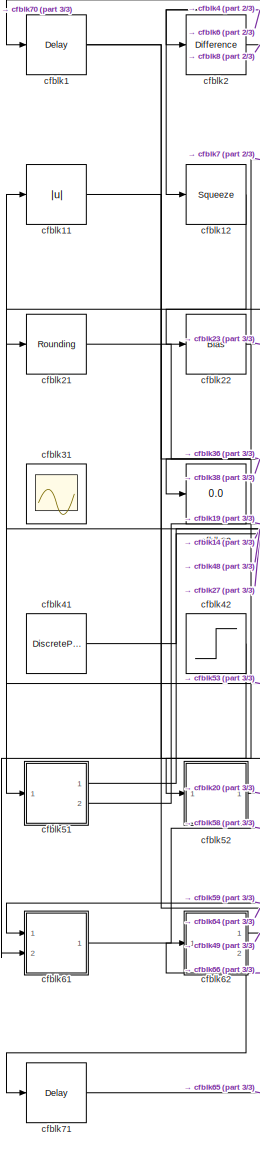
[diagram: root canvas - part 1/3, left side, full height]
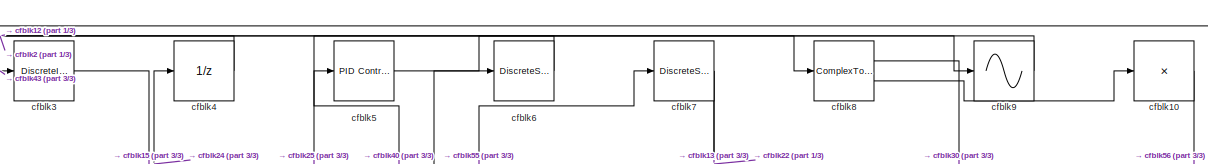
[diagram: root canvas - part 2/3, full width, top band]
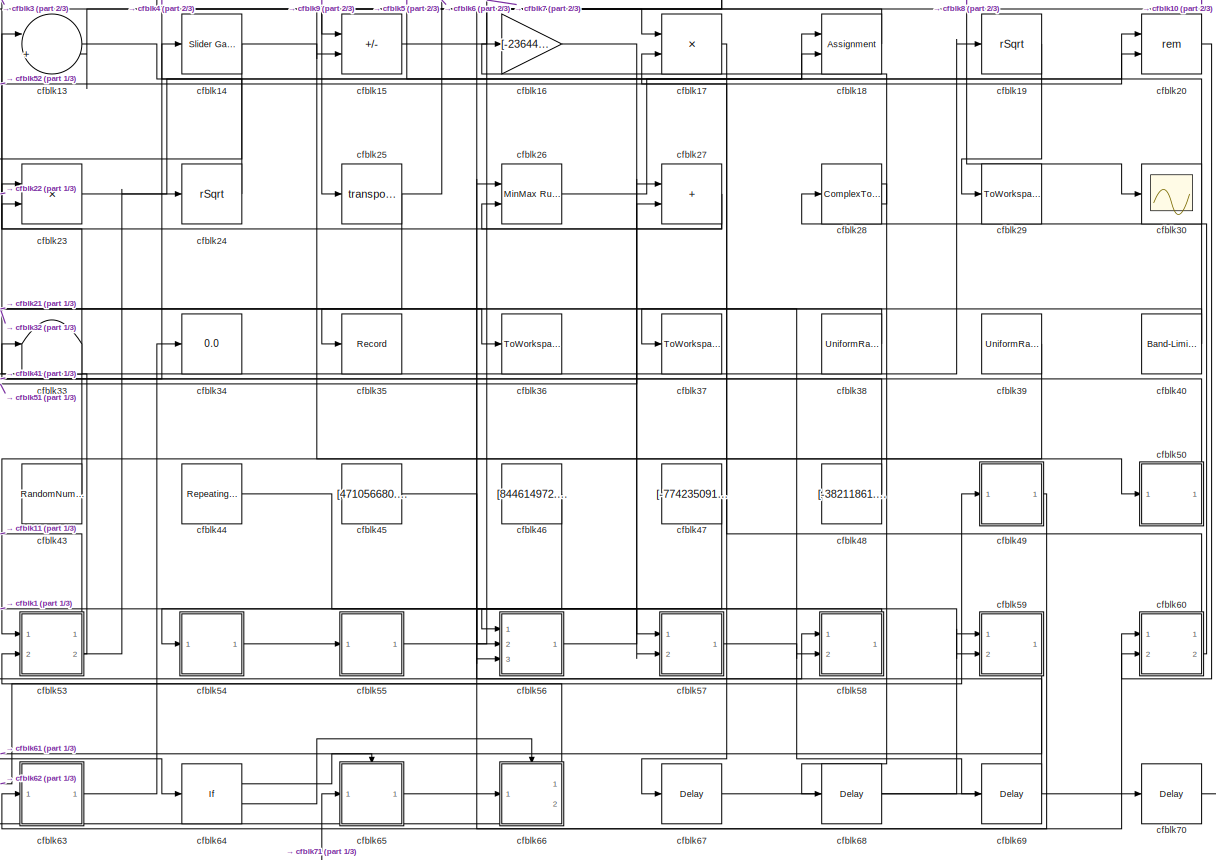
[diagram: root canvas - part 3/3, full width, middle band]
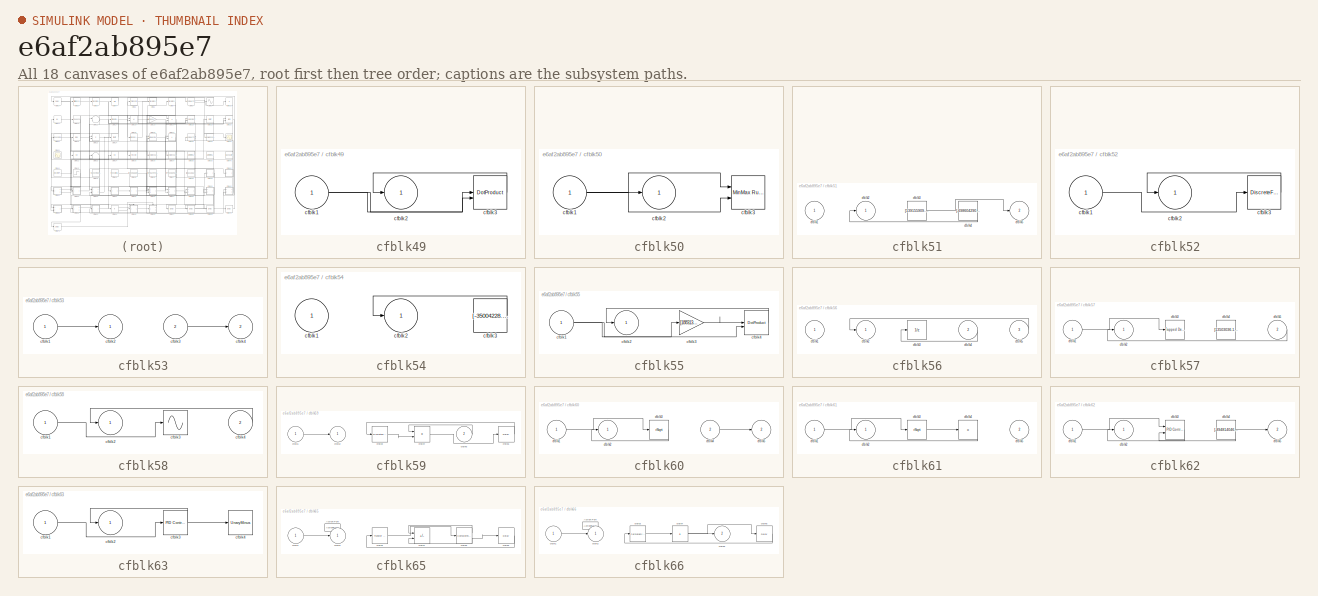
[diagram: thumbnail index - all 18 canvases of the model, root first then tree order]
MODEL slx_e6af2ab895e7
KIND model
CONFIG AbsTol = auto
CONFIG EnableMultiTasking = off
CONFIG FixedStep = auto
CONFIG MaxStep = auto
CONFIG MinStep = auto
CONFIG RelTol = 1e-3
CONFIG SampleTimeConstraint = Unconstrained
CONFIG SolverName = VariableStepAuto
CONFIG StartTime = 0.0
CONFIG StopTime = 10.0
BLOCK [Delay] cfblk1
  InputPortMap = u0
  Ports = [1, 1]
  SampleTime = 1
BLOCK [Product] cfblk10
  Inputs = *
  Ports = [1, 1]
BLOCK [Abs] cfblk11
  SaturateOnIntegerOverflow = off
BLOCK [Squeeze] cfblk12
BLOCK [Sum] cfblk13
  Inputs = |++
  Ports = [2, 1]
BLOCK [Reference] cfblk14  REF=simulink/Math
Operations/Slider
Gain
  Ports = [1, 1]
  SourceBlock = simulink/Math\nOperations/Slider\nGain
  SourceProductBaseCode = SL
  SourceType = Slider Gain
BLOCK [Sum] cfblk15
  IconShape = rectangular
  Inputs = +-
  Ports = [2, 1]
BLOCK [Gain] cfblk16
  Gain = [-236442905.790173]
BLOCK [Product] cfblk17
  Inputs = **
  Ports = [2, 1]
BLOCK [Assignment] cfblk18
  DiagnosticForDimensions = Warning
  IndexOptions = Index vector (dialog)
  Indices = 1
  OutputSizes = 1
  Ports = [2, 1]
BLOCK [Sqrt] cfblk19
  AlgorithmType = Newton-Raphson
  Operator = rSqrt
BLOCK [Reference] cfblk2  REF=simulink/Discrete/Difference
  Ports = [1, 1]
  SourceBlock = simulink/Discrete/Difference
  SourceProductBaseCode = SL
  SourceType = Difference
BLOCK [Math] cfblk20
  Operator = rem
  Ports = [2, 1]
BLOCK [Rounding] cfblk21
BLOCK [Bias] cfblk22
  Bias = [893360634.413111]
  SaturateOnIntegerOverflow = off
BLOCK [Product] cfblk23
  Inputs = **
  Ports = [2, 1]
BLOCK [Sqrt] cfblk24
  AlgorithmType = Newton-Raphson
  Operator = rSqrt
BLOCK [Math] cfblk25
  Operator = transpose
  Ports = [1, 1]
BLOCK [Reference] cfblk26  REF=simulink/Math
Operations/MinMax
Running
Resettable
  Ports = [2, 1]
  SourceBlock = simulink/Math\nOperations/MinMax\nRunning\nResettable
  SourceProductBaseCode = SL
  SourceType = MinMax Running Resettable
BLOCK [Sum] cfblk27
  IconShape = rectangular
  Ports = [2, 1]
BLOCK [ComplexToMagnitudeAngle] cfblk28
  Ports = [1, 2]
BLOCK [ToWorkspace] cfblk29
  FixptAsFi = on
  MaxDataPoints = inf
  Ports = [1]
  SampleTime = -1
  SaveFormat = Timeseries
  VariableName = bmaxmlt
BLOCK [DiscreteIntegrator] cfblk3
  ICPrevOutput = DiscIntNeverNeededParam
  ICPrevScaledInput = DiscIntNeverNeededParam
  InitialConditionSetting = Auto
  Ports = [1, 1]
BLOCK [Scope] cfblk30
  Floating = off
  NumInputPorts = 1
  Ports = [1]
BLOCK [Scope] cfblk31
  Floating = on
  NumInputPorts = 1
  Ports = []
BLOCK [Display] cfblk32
  Decimation = 1
  Ports = [1]
BLOCK [Terminator] cfblk33
BLOCK [Display] cfblk34
  Decimation = 1
  Ports = [1]
BLOCK [Record] cfblk35
  FileSettingsInternal = {"entries":[{"content":{"excelSettings":{"content":{},"type":"Streamout.ExcelSettings"}},"type":"Streamout.FileSettingStorage","uuid":"b6a5201c-cc65-4394-8318-2e7b67d75991"}],"packageUris":["http://schema.mathworks.com/mf0/streamout_blocks/R2020a"],"version":"1.0"}
  Ports = [1]
  SignalsInternal = {"entries":[{"content":{"signals":[{"content":{"blockPath":["sampleModel165/cfblk35"],"channel":[],"dimensions":[1,1],"domain":"sampleModel165/cfblk35","lineColor":"#139fff","plots":[1],"port":1,"sid":[""],"signalID":6213,"signalName":"cfblk25"},"type":"RecordBlkView.Signal","uuid":"4658ca25-e310-4004-b648-9cafa9c762c2"}]},"type":"RecordBlkView.InputSignals","uuid":"67faf64a-632e-47a0-acba-e1a5c06...<+99ch>
  VisualizationBindings = {"sparklinesplugin":{"info":[{"bindingParametersList":[],"subplotID":1}]}}
BLOCK [ToWorkspace] cfblk36
  FixptAsFi = on
  MaxDataPoints = inf
  Ports = [1]
  SampleTime = -1
  SaveFormat = Timeseries
  VariableName = nwavafb
BLOCK [ToWorkspace] cfblk37
  FixptAsFi = on
  MaxDataPoints = inf
  Ports = [1]
  SampleTime = -1
  SaveFormat = Timeseries
  VariableName = hvulkge
BLOCK [UniformRandomNumber] cfblk38
  Maximum = [1666055554.020015]
  Minimum = [-4824289272.714030]
  SampleTime = 0.1
  Seed = [13963222.000000]
BLOCK [UniformRandomNumber] cfblk39
  Maximum = [4145607413.978978]
  Minimum = [-5494796359.543709]
  SampleTime = 0.1
  Seed = [29917681.000000]
BLOCK [UnitDelay] cfblk4
  HasFrameUpgradeWarning = on
BLOCK [Reference] cfblk40  REF=simulink/Sources/Band-Limited
White Noise
  Ports = [0, 1]
  SourceBlock = simulink/Sources/Band-Limited\nWhite Noise
  SourceProductBaseCode = SL
  SourceType = Band-Limited White Noise.
BLOCK [DiscretePulseGenerator] cfblk41
  Amplitude = [-415616117.482009]
  Period = [3813721.989670]
  PhaseDelay = [6.000000]
  Ports = [0, 1]
  PulseType = Time based
  PulseWidth = 5
BLOCK [Step] cfblk42
  After = [-739509071.647704]
  Before = [-691626407.342706]
  SampleTime = 0
  Time = [4.000000]
BLOCK [RandomNumber] cfblk43
  Mean = [-18821.312850]
  SampleTime = 0.1
  Seed = [758949493.000000]
  Variance = [55831.299182]
BLOCK [Reference] cfblk44  REF=simulink/Sources/Repeating
Sequence
Stair
  Ports = [0, 1]
  SourceBlock = simulink/Sources/Repeating\nSequence\nStair
  SourceProductBaseCode = SL
  SourceType = Repeating Sequence Stair
BLOCK [Constant] cfblk45
  SampleTime = 1
  Value = [471056680.253536]
BLOCK [Constant] cfblk46
  SampleTime = 1
  Value = [844614972.197464]
BLOCK [Constant] cfblk47
  SampleTime = 1
  Value = [-774235091.951901]
BLOCK [Constant] cfblk48
  SampleTime = 1
  Value = [-38211861.722596]
BLOCK [SubSystem] cfblk49
  Ports = [1, 1]
  RequestExecContextInheritance = off
BLOCK [Inport] cfblk49/cfblk1
BLOCK [Outport] cfblk49/cfblk2
BLOCK [DotProduct] cfblk49/cfblk3
  OutDataTypeStr = Inherit: Inherit via internal rule
BLOCK [Reference] cfblk5  REF=slpidlib/PID Controller
  Ports = [1, 1]
  SourceBlock = slpidlib/PID Controller
  SourceProductBaseCode = SL
  SourceType = PID 1dof
BLOCK [SubSystem] cfblk50
  Ports = [1, 1]
  RequestExecContextInheritance = off
BLOCK [Inport] cfblk50/cfblk1
BLOCK [Outport] cfblk50/cfblk2
BLOCK [Reference] cfblk50/cfblk3  REF=simulink/Math
Operations/MinMax
Running
Resettable
  Ports = [2, 1]
  SourceBlock = simulink/Math\nOperations/MinMax\nRunning\nResettable
  SourceProductBaseCode = SL
  SourceType = MinMax Running Resettable
BLOCK [SubSystem] cfblk51
  Ports = [1, 2]
  RequestExecContextInheritance = off
BLOCK [Inport] cfblk51/cfblk1
BLOCK [Outport] cfblk51/cfblk2
BLOCK [Constant] cfblk51/cfblk3
  SampleTime = 1
  Value = [139155909.671998]
BLOCK [Constant] cfblk51/cfblk4
  SampleTime = 1
  Value = [-698604290.729357]
BLOCK [Outport] cfblk51/cfblk5
  Port = 2
BLOCK [SubSystem] cfblk52
  Ports = [1, 1]
  RequestExecContextInheritance = off
BLOCK [Inport] cfblk52/cfblk1
BLOCK [Outport] cfblk52/cfblk2
BLOCK [DiscreteFilter] cfblk52/cfblk3
  InputPortMap = u0
  Ports = [1, 1]
  SampleTime = 1
BLOCK [SubSystem] cfblk53
  Ports = [2, 2]
  RequestExecContextInheritance = off
BLOCK [Inport] cfblk53/cfblk1
BLOCK [Outport] cfblk53/cfblk2
BLOCK [Inport] cfblk53/cfblk3
  Port = 2
BLOCK [Outport] cfblk53/cfblk4
  Port = 2
BLOCK [SubSystem] cfblk54
  Ports = [1, 1]
  RequestExecContextInheritance = off
BLOCK [Inport] cfblk54/cfblk1
BLOCK [Outport] cfblk54/cfblk2
BLOCK [Constant] cfblk54/cfblk3
  SampleTime = 1
  Value = [-35004228.688269]
BLOCK [SubSystem] cfblk55
  Ports = [1, 1]
  RequestExecContextInheritance = off
BLOCK [Inport] cfblk55/cfblk1
BLOCK [Outport] cfblk55/cfblk2
BLOCK [Gain] cfblk55/cfblk3
  Gain = [188313165.648254]
BLOCK [DotProduct] cfblk55/cfblk4
  OutDataTypeStr = Inherit: Inherit via internal rule
BLOCK [SubSystem] cfblk56
  Ports = [3, 1]
  RequestExecContextInheritance = off
BLOCK [Inport] cfblk56/cfblk1
BLOCK [Outport] cfblk56/cfblk2
BLOCK [UnitDelay] cfblk56/cfblk3
  HasFrameUpgradeWarning = on
BLOCK [Inport] cfblk56/cfblk4
  Port = 2
BLOCK [Inport] cfblk56/cfblk5
  Port = 3
BLOCK [SubSystem] cfblk57
  Ports = [2, 1]
  RequestExecContextInheritance = off
BLOCK [Inport] cfblk57/cfblk1
BLOCK [Outport] cfblk57/cfblk2
BLOCK [Reference] cfblk57/cfblk3  REF=simulink/Discrete/Tapped Delay
  Ports = [1, 1]
  SourceBlock = simulink/Discrete/Tapped Delay
  SourceProductBaseCode = SL
  SourceType = Tapped Delay Line
BLOCK [Constant] cfblk57/cfblk4
  SampleTime = 1
  Value = [13503036.166388]
BLOCK [Inport] cfblk57/cfblk5
  Port = 2
BLOCK [SubSystem] cfblk58
  Ports = [2, 1]
  RequestExecContextInheritance = off
BLOCK [Inport] cfblk58/cfblk1
BLOCK [Outport] cfblk58/cfblk2
BLOCK [Sin] cfblk58/cfblk3
  Ports = [1, 1]
  SampleTime = 0
  TimeSource = Use external signal
BLOCK [Inport] cfblk58/cfblk4
  Port = 2
BLOCK [SubSystem] cfblk59
  Ports = [2, 1]
  RequestExecContextInheritance = off
BLOCK [Inport] cfblk59/cfblk1
BLOCK [Outport] cfblk59/cfblk2
BLOCK [DiscreteStateSpace] cfblk59/cfblk3
BLOCK [Product] cfblk59/cfblk4
  Inputs = **
  Ports = [2, 1]
BLOCK [Inport] cfblk59/cfblk5
  Port = 2
BLOCK [Delay] cfblk59/cfblk6
  InputPortMap = u0
  Ports = [1, 1]
  SampleTime = 1
BLOCK [DiscreteStateSpace] cfblk6
BLOCK [SubSystem] cfblk60
  Ports = [2, 2]
  RequestExecContextInheritance = off
BLOCK [Inport] cfblk60/cfblk1
BLOCK [Outport] cfblk60/cfblk2
BLOCK [Sqrt] cfblk60/cfblk3
  AlgorithmType = Newton-Raphson
  Operator = rSqrt
BLOCK [Inport] cfblk60/cfblk4
  Port = 2
BLOCK [Outport] cfblk60/cfblk5
  Port = 2
BLOCK [SubSystem] cfblk61
  Ports = [2, 1]
  RequestExecContextInheritance = off
BLOCK [Inport] cfblk61/cfblk1
BLOCK [Outport] cfblk61/cfblk2
BLOCK [Sqrt] cfblk61/cfblk3
  AlgorithmType = Newton-Raphson
  Operator = rSqrt
BLOCK [Product] cfblk61/cfblk4
  Inputs = *
  Ports = [1, 1]
BLOCK [Inport] cfblk61/cfblk5
  Port = 2
BLOCK [SubSystem] cfblk62
  Ports = [1, 2]
  RequestExecContextInheritance = off
BLOCK [Inport] cfblk62/cfblk1
BLOCK [Outport] cfblk62/cfblk2
BLOCK [Reference] cfblk62/cfblk3  REF=slpidlib/PID Controller (2DOF)
  Ports = [2, 1]
  SourceBlock = slpidlib/PID Controller (2DOF)
  SourceProductBaseCode = SL
  SourceType = PID 2dof
BLOCK [Constant] cfblk62/cfblk4
  SampleTime = 1
  Value = [-894814046.289588]
BLOCK [Outport] cfblk62/cfblk5
  Port = 2
BLOCK [SubSystem] cfblk63
  Ports = [1, 1]
  RequestExecContextInheritance = off
BLOCK [Inport] cfblk63/cfblk1
BLOCK [Outport] cfblk63/cfblk2
BLOCK [Reference] cfblk63/cfblk3  REF=slpidlib/PID Controller
  Ports = [1, 1]
  SourceBlock = slpidlib/PID Controller
  SourceProductBaseCode = SL
  SourceType = PID 1dof
BLOCK [UnaryMinus] cfblk63/cfblk4
BLOCK [If] cfblk64
  IfExpression = u1 >= 0
  Ports = [1, 2]
  SampleTime = 1
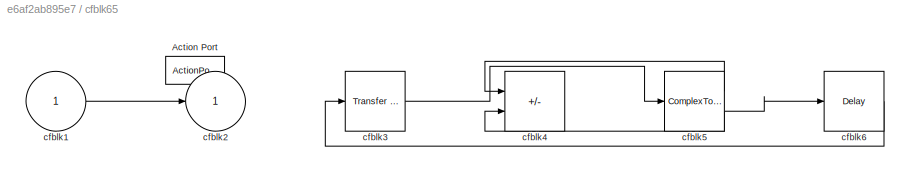
BLOCK [SubSystem] cfblk65
  Ports = [1, 1, 0, 0, 0, 0, 0, 1]
  RequestExecContextInheritance = off
  TreatAsAtomicUnit = on
BLOCK [ActionPort] cfblk65/Action Port
  ActionPortLabel = if(u1 >= 0)
BLOCK [Inport] cfblk65/cfblk1
BLOCK [Outport] cfblk65/cfblk2
BLOCK [Reference] cfblk65/cfblk3  REF=simulink/Discrete/Transfer Fcn
First Order
  Ports = [1, 1]
  SourceBlock = simulink/Discrete/Transfer Fcn\nFirst Order
  SourceProductBaseCode = SL
  SourceType = First Order Transfer Fcn
BLOCK [Sum] cfblk65/cfblk4
  IconShape = rectangular
  Inputs = +-
  Ports = [2, 1]
BLOCK [ComplexToRealImag] cfblk65/cfblk5
  Ports = [1, 2]
BLOCK [Delay] cfblk65/cfblk6
  InputPortMap = u0
  Ports = [1, 1]
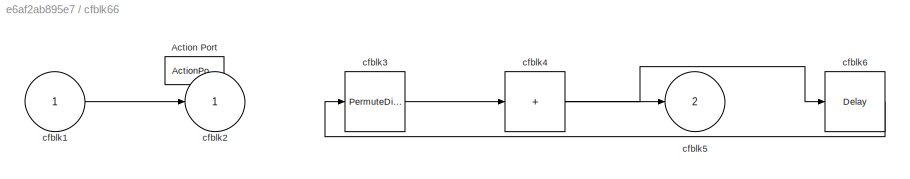
BLOCK [SubSystem] cfblk66
  Ports = [1, 2, 0, 0, 0, 0, 0, 1]
  RequestExecContextInheritance = off
  TreatAsAtomicUnit = on
BLOCK [ActionPort] cfblk66/Action Port
  ActionPortLabel = else
BLOCK [Inport] cfblk66/cfblk1
BLOCK [Outport] cfblk66/cfblk2
BLOCK [PermuteDimensions] cfblk66/cfblk3
BLOCK [Sum] cfblk66/cfblk4
  IconShape = rectangular
  Inputs = +
  Ports = [1, 1]
BLOCK [Outport] cfblk66/cfblk5
  Port = 2
BLOCK [Delay] cfblk66/cfblk6
  InputPortMap = u0
  Ports = [1, 1]
BLOCK [Delay] cfblk67
  InputPortMap = u0
  Ports = [1, 1]
  SampleTime = 1
BLOCK [Delay] cfblk68
  InputPortMap = u0
  Ports = [1, 1]
  SampleTime = 1
BLOCK [Delay] cfblk69
  InputPortMap = u0
  Ports = [1, 1]
  SampleTime = 1
BLOCK [DiscreteStateSpace] cfblk7
BLOCK [Delay] cfblk70
  InputPortMap = u0
  Ports = [1, 1]
  SampleTime = 1
BLOCK [Delay] cfblk71
  InputPortMap = u0
  Ports = [1, 1]
  SampleTime = 1
BLOCK [ComplexToMagnitudeAngle] cfblk8
  Ports = [1, 2]
BLOCK [Sin] cfblk9
  Ports = [1, 1]
  SampleTime = 0
  TimeSource = Use external signal
LINE cfblk10:1 -> cfblk56:3
LINE cfblk11:1 -> cfblk36:1
LINE cfblk12:1 -> cfblk51:1
LINE cfblk13:1 -> cfblk18:2
NET cfblk14:1 -> cfblk50:1, cfblk52:1
LINE cfblk15:1 -> cfblk17:1
LINE cfblk16:1 -> cfblk57:1
LINE cfblk17:1 -> cfblk67:1
LINE cfblk18:1 -> cfblk15:1
LINE cfblk19:1 -> cfblk29:1
NET cfblk1:1 -> cfblk59:2, cfblk64:1
LINE cfblk20:1 -> cfblk60:1
LINE cfblk21:1 -> cfblk58:2
LINE cfblk22:1 -> cfblk23:1
LINE cfblk23:1 -> cfblk18:1
LINE cfblk24:1 -> cfblk4:1
NET cfblk25:1 -> cfblk35:1, cfblk6:1
LINE cfblk26:1 -> cfblk20:1
NET cfblk27:1 -> cfblk23:2, cfblk26:2
LINE cfblk28:1 -> cfblk68:1
LINE cfblk28:2 -> cfblk16:1
LINE cfblk2:1 -> cfblk8:1
LINE cfblk38:1 -> cfblk32:1
LINE cfblk39:1 -> cfblk53:1
LINE cfblk3:1 -> cfblk15:2
NET cfblk40:1 -> cfblk37:1, cfblk5:1
LINE cfblk41:1 -> cfblk14:1
LINE cfblk42:1 -> cfblk61:2
LINE cfblk43:1 -> cfblk3:1
LINE cfblk44:1 -> cfblk57:2
LINE cfblk45:1 -> cfblk66:1
LINE cfblk46:1 -> cfblk54:1
LINE cfblk47:1 -> cfblk56:2
LINE cfblk48:1 -> cfblk21:1
NET cfblk49/cfblk1:1 -> cfblk49/cfblk3:1, cfblk49/cfblk3:2
LINE cfblk49/cfblk3:1 -> cfblk49/cfblk2:1
LINE cfblk49:1 -> cfblk63:1
LINE cfblk4:1 -> cfblk12:1
NET cfblk50/cfblk1:1 -> cfblk50/cfblk2:1, cfblk50/cfblk3:1, cfblk50/cfblk3:2
LINE cfblk50:1 -> cfblk13:1
LINE cfblk51/cfblk3:1 -> cfblk51/cfblk5:1
LINE cfblk51/cfblk4:1 -> cfblk51/cfblk2:1
LINE cfblk51:1 -> cfblk27:2
LINE cfblk51:2 -> cfblk19:1
LINE cfblk52/cfblk1:1 -> cfblk52/cfblk3:1
LINE cfblk52/cfblk3:1 -> cfblk52/cfblk2:1
LINE cfblk52:1 -> cfblk20:2
LINE cfblk53/cfblk1:1 -> cfblk53/cfblk2:1
LINE cfblk53/cfblk3:1 -> cfblk53/cfblk4:1
LINE cfblk53:1 -> cfblk11:1
NET cfblk53:2 -> cfblk24:1, cfblk33:1
LINE cfblk54/cfblk3:1 -> cfblk54/cfblk2:1
LINE cfblk54:1 -> cfblk55:1
NET cfblk55/cfblk1:1 -> cfblk55/cfblk3:1, cfblk55/cfblk4:2
LINE cfblk55/cfblk3:1 -> cfblk55/cfblk4:1
LINE cfblk55/cfblk4:1 -> cfblk55/cfblk2:1
LINE cfblk55:1 -> cfblk7:1
LINE cfblk56/cfblk4:1 -> cfblk56/cfblk3:1
LINE cfblk56/cfblk5:1 -> cfblk56/cfblk2:1
LINE cfblk56:1 -> cfblk27:1
LINE cfblk57/cfblk1:1 -> cfblk57/cfblk3:1
LINE cfblk57/cfblk5:1 -> cfblk57/cfblk2:1
LINE cfblk57:1 -> cfblk69:1
LINE cfblk58/cfblk1:1 -> cfblk58/cfblk3:1
LINE cfblk58/cfblk4:1 -> cfblk58/cfblk2:1
LINE cfblk58:1 -> cfblk56:1
LINE cfblk59/cfblk1:1 -> cfblk59/cfblk2:1
LINE cfblk59/cfblk3:1 -> cfblk59/cfblk4:2
LINE cfblk59/cfblk4:1 -> cfblk59/cfblk6:1
LINE cfblk59/cfblk5:1 -> cfblk59/cfblk4:1
LINE cfblk59/cfblk6:1 -> cfblk59/cfblk3:1
LINE cfblk59:1 -> cfblk61:1
LINE cfblk5:1 -> cfblk9:1
LINE cfblk60/cfblk1:1 -> cfblk60/cfblk3:1
LINE cfblk60/cfblk3:1 -> cfblk60/cfblk2:1
LINE cfblk60/cfblk4:1 -> cfblk60/cfblk5:1
LINE cfblk60:1 -> cfblk17:2
LINE cfblk60:2 -> cfblk28:1
LINE cfblk61/cfblk1:1 -> cfblk61/cfblk3:1
LINE cfblk61/cfblk3:1 -> cfblk61/cfblk4:1
LINE cfblk61/cfblk4:1 -> cfblk61/cfblk2:1
LINE cfblk61:1 -> cfblk58:1
LINE cfblk62/cfblk1:1 -> cfblk62/cfblk3:1
LINE cfblk62/cfblk3:1 -> cfblk62/cfblk2:1
NET cfblk62/cfblk4:1 -> cfblk62/cfblk3:2, cfblk62/cfblk5:1
LINE cfblk62:1 -> cfblk49:1
LINE cfblk62:2 -> cfblk71:1
LINE cfblk63/cfblk1:1 -> cfblk63/cfblk3:1
NET cfblk63/cfblk3:1 -> cfblk63/cfblk2:1, cfblk63/cfblk4:1
LINE cfblk63:1 -> cfblk34:1
LINE cfblk64:1 -> cfblk65:ifaction
LINE cfblk64:2 -> cfblk66:ifaction
LINE cfblk65/cfblk1:1 -> cfblk65/cfblk2:1
LINE cfblk65/cfblk3:1 -> cfblk65/cfblk5:1
LINE cfblk65/cfblk5:1 -> cfblk65/cfblk4:1
NET cfblk65/cfblk5:2 -> cfblk65/cfblk4:2, cfblk65/cfblk6:1
LINE cfblk65/cfblk6:1 -> cfblk65/cfblk3:1
LINE cfblk65:1 -> cfblk70:1
LINE cfblk66/cfblk1:1 -> cfblk66/cfblk2:1
LINE cfblk66/cfblk3:1 -> cfblk66/cfblk4:1
NET cfblk66/cfblk4:1 -> cfblk66/cfblk5:1, cfblk66/cfblk6:1
LINE cfblk66/cfblk6:1 -> cfblk66/cfblk3:1
LINE cfblk66:1 -> cfblk53:2
LINE cfblk66:2 -> cfblk62:1
LINE cfblk67:1 -> cfblk60:2
LINE cfblk68:1 -> cfblk59:1
LINE cfblk69:1 -> cfblk26:1
LINE cfblk6:1 -> cfblk2:1
LINE cfblk70:1 -> cfblk1:1
LINE cfblk71:1 -> cfblk65:1
NET cfblk7:1 -> cfblk13:2, cfblk22:1
LINE cfblk8:1 -> cfblk30:1
LINE cfblk8:2 -> cfblk10:1
LINE cfblk9:1 -> cfblk25:1
note: NET lines group one-source signal fan-out (src -> all destinations, sorted); 1:1 wires keep LINE
